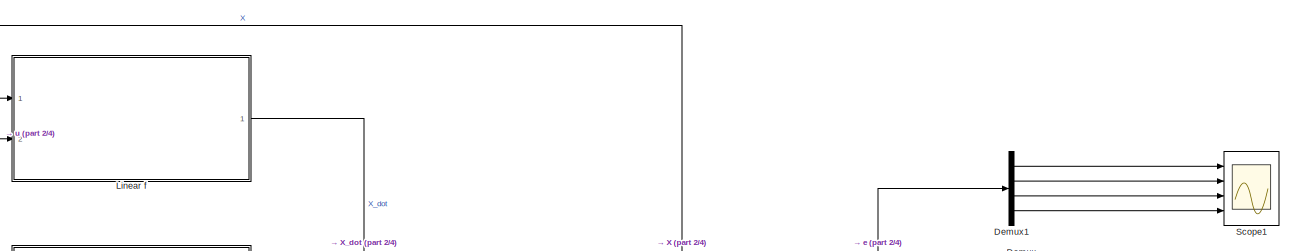
[diagram: root canvas - part 1/4, full width, top band]
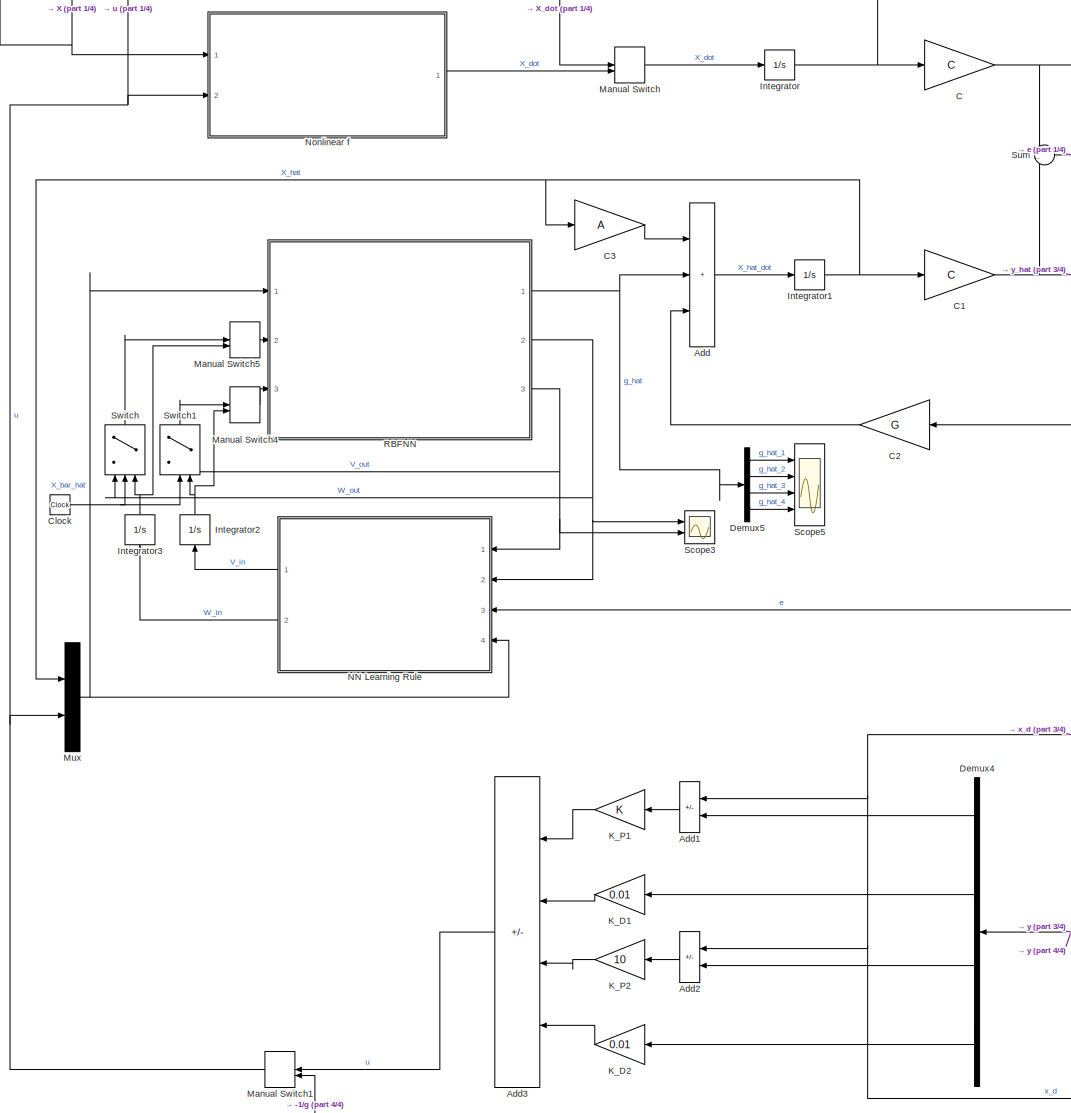
[diagram: root canvas - part 2/4, central region]
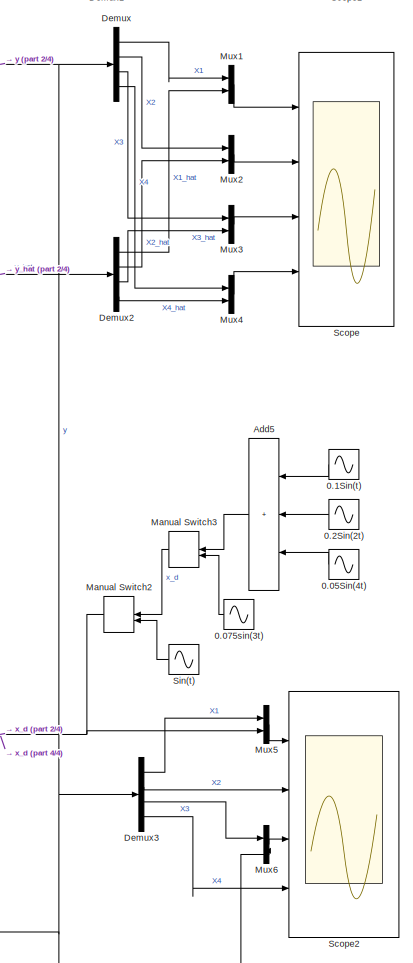
[diagram: root canvas - part 3/4, middle right region]
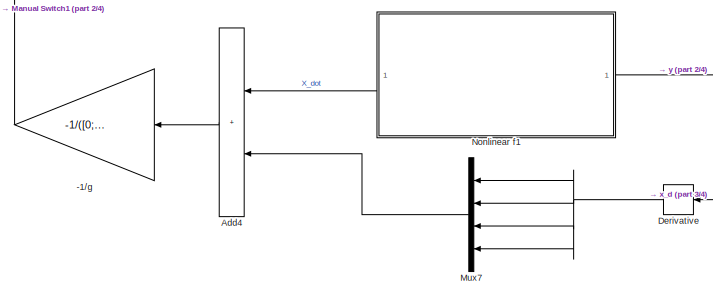
[diagram: root canvas - part 4/4, bottom center region]
MODEL slx_8a7c0950b799
KIND model
CONFIG AbsTol = auto
CONFIG EnableMultiTasking = off
CONFIG FixedStep = auto
CONFIG MaxStep = auto
CONFIG MinStep = auto
CONFIG RelTol = 1e-3
CONFIG SampleTimeConstraint = Unconstrained
CONFIG SolverName = VariableStepAuto
CONFIG StartTime = 0.0
CONFIG StopTime = 100
BLOCK [Gain] -1//g
  Gain = -1/([0;98.3333;0;-98.3333])
  Multiplication = Matrix(K*u)
  NameLocation = top
BLOCK [Sin] 0.05Sin(4t)
  Amplitude = 0.05
  Frequency = 4
  Ports = [0, 1]
  SampleTime = 0
BLOCK [Sin] 0.075sin(3t)
  Amplitude = 0.075
  Frequency = 3
  Ports = [0, 1]
  SampleTime = 0
BLOCK [Sin] 0.1Sin(t)
  Amplitude = 0.1
  Ports = [0, 1]
  SampleTime = 0
BLOCK [Sin] 0.2Sin(2t)
  Amplitude = 0.2
  Frequency = 2
  Ports = [0, 1]
  SampleTime = 0
BLOCK [Sum] Add
  IconShape = rectangular
  Inputs = +++
  Ports = [3, 1]
BLOCK [Sum] Add1
  IconShape = rectangular
  Inputs = +-
  NameLocation = top
  Ports = [2, 1]
BLOCK [Sum] Add2
  IconShape = rectangular
  Inputs = +-
  NameLocation = top
  Ports = [2, 1]
BLOCK [Sum] Add3
  IconShape = rectangular
  Inputs = +-+-
  NameLocation = top
  Ports = [4, 1]
BLOCK [Sum] Add4
  IconShape = rectangular
  NameLocation = top
  Ports = [2, 1]
BLOCK [Sum] Add5
  IconShape = rectangular
  Inputs = +++
  NameLocation = top
  Ports = [3, 1]
BLOCK [Gain] C
  Gain = C
  Multiplication = Matrix(K*u)
BLOCK [Gain] C1
  Gain = C
  Multiplication = Matrix(K*u)
BLOCK [Gain] C2
  Gain = G
  Multiplication = Matrix(K*u)
  NameLocation = top
BLOCK [Gain] C3
  Gain = A
  Multiplication = Matrix(K*u)
BLOCK [Clock] Clock
BLOCK [Demux] Demux
  Ports = [1, 4]
BLOCK [Demux] Demux1
  Ports = [1, 4]
BLOCK [Demux] Demux2
  Ports = [1, 4]
BLOCK [Demux] Demux3
  Ports = [1, 4]
BLOCK [Demux] Demux4
  NameLocation = top
  Ports = [1, 4]
BLOCK [Demux] Demux5
  Ports = [1, 4]
BLOCK [Derivative] Derivative
  NameLocation = top
BLOCK [Integrator] Integrator
  InitialCondition = [0;0;0;0]
  Ports = [1, 1]
BLOCK [Integrator] Integrator1
  InitialCondition = [0;0;0;0]
  Ports = [1, 1]
BLOCK [Integrator] Integrator2
  InitialCondition = V0
  NameLocation = right
  Ports = [1, 1]
BLOCK [Integrator] Integrator3
  InitialCondition = W0
  NameLocation = right
  Ports = [1, 1]
BLOCK [Gain] K_D1
  Gain = 0.01
BLOCK [Gain] K_D2
  Gain = 0.01
BLOCK [Gain] K_P1
BLOCK [Gain] K_P2
  Gain = 10
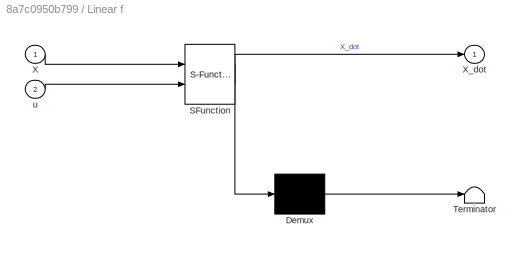
BLOCK [SubSystem] Linear f
  ErrorFcn = Stateflow.Translate.translate
  PermitHierarchicalResolution = ExplicitOnly
  Ports = [2, 1]
  RequestExecContextInheritance = off
  SFBlockType = MATLAB Function
  TreatAsAtomicUnit = on
BLOCK [Demux] Linear f/ Demux 
  Outputs = 1
  Ports = [1, 1]
BLOCK [S-Function] Linear f/ SFunction 
  EnableBusSupport = on
  FunctionName = sf_sfun
  PortCounts = [2 2]
  Ports = [2, 2]
  SFcnIsStateOwnerBlock = off
  SFunctionDeploymentMode = off
  Tag = Stateflow S-Function 4
BLOCK [Terminator] Linear f/ Terminator 
BLOCK [Inport] Linear f/X
BLOCK [Outport] Linear f/X_dot
BLOCK [Inport] Linear f/u
  Port = 2
BLOCK [ManualSwitch] Manual Switch
  CurrentSetting = 0
BLOCK [ManualSwitch] Manual Switch1
  NameLocation = top
BLOCK [ManualSwitch] Manual Switch2
  CurrentSetting = 0
  NameLocation = top
BLOCK [ManualSwitch] Manual Switch3
  CurrentSetting = 0
  NameLocation = top
BLOCK [ManualSwitch] Manual Switch4
BLOCK [ManualSwitch] Manual Switch5
BLOCK [Mux] Mux
  DisplayOption = bar
  Inputs = 2
  Ports = [2, 1]
BLOCK [Mux] Mux1
  DisplayOption = bar
  Inputs = 2
  Ports = [2, 1]
BLOCK [Mux] Mux2
  DisplayOption = bar
  Inputs = 2
  Ports = [2, 1]
BLOCK [Mux] Mux3
  DisplayOption = bar
  Inputs = 2
  Ports = [2, 1]
BLOCK [Mux] Mux4
  DisplayOption = bar
  Inputs = 2
  Ports = [2, 1]
BLOCK [Mux] Mux5
  DisplayOption = bar
  Inputs = 2
  Ports = [2, 1]
BLOCK [Mux] Mux6
  DisplayOption = bar
  Inputs = 2
  Ports = [2, 1]
BLOCK [Mux] Mux7
  DisplayOption = bar
  NameLocation = top
  Ports = [4, 1]
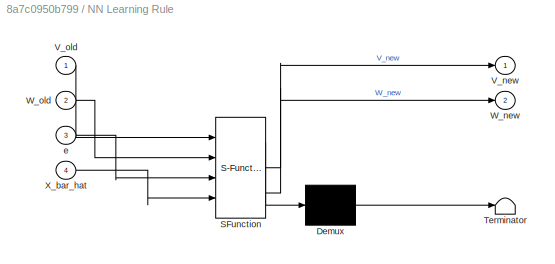
BLOCK [SubSystem] NN Learning Rule
  ErrorFcn = Stateflow.Translate.translate
  NameLocation = top
  PermitHierarchicalResolution = ExplicitOnly
  Ports = [4, 2]
  RequestExecContextInheritance = off
  SFBlockType = MATLAB Function
  TreatAsAtomicUnit = on
BLOCK [Demux] NN Learning Rule/ Demux 
  Outputs = 1
  Ports = [1, 1]
BLOCK [S-Function] NN Learning Rule/ SFunction 
  EnableBusSupport = on
  FunctionName = sf_sfun
  Parameters = Ac,C,eta1,eta2,rho1,rho2,size_hiddenlayerneurons
  PortCounts = [4 3]
  Ports = [4, 3]
  SFcnIsStateOwnerBlock = off
  SFunctionDeploymentMode = off
  Tag = Stateflow S-Function 3
BLOCK [Terminator] NN Learning Rule/ Terminator 
BLOCK [Outport] NN Learning Rule/V_new
BLOCK [Inport] NN Learning Rule/V_old
BLOCK [Outport] NN Learning Rule/W_new
  Port = 2
BLOCK [Inport] NN Learning Rule/W_old
  Port = 2
BLOCK [Inport] NN Learning Rule/X_bar_hat
  Port = 4
BLOCK [Inport] NN Learning Rule/e
  Port = 3
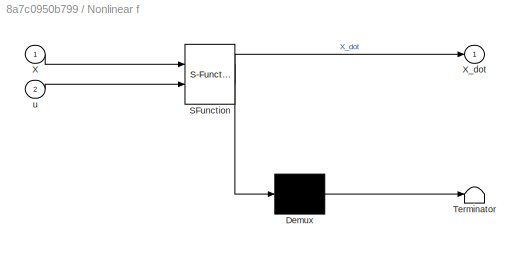
BLOCK [SubSystem] Nonlinear f
  ErrorFcn = Stateflow.Translate.translate
  PermitHierarchicalResolution = ExplicitOnly
  Ports = [2, 1]
  RequestExecContextInheritance = off
  SFBlockType = MATLAB Function
  TreatAsAtomicUnit = on
BLOCK [Demux] Nonlinear f/ Demux 
  Outputs = 1
  Ports = [1, 1]
BLOCK [S-Function] Nonlinear f/ SFunction 
  EnableBusSupport = on
  FunctionName = sf_sfun
  PortCounts = [2 2]
  Ports = [2, 2]
  SFcnIsStateOwnerBlock = off
  SFunctionDeploymentMode = off
  Tag = Stateflow S-Function 2
BLOCK [Terminator] Nonlinear f/ Terminator 
BLOCK [Inport] Nonlinear f/X
BLOCK [Outport] Nonlinear f/X_dot
BLOCK [Inport] Nonlinear f/u
  Port = 2
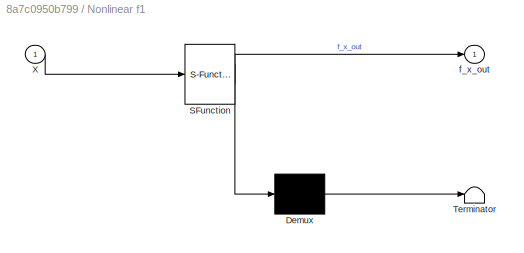
BLOCK [SubSystem] Nonlinear f1
  ErrorFcn = Stateflow.Translate.translate
  NameLocation = top
  PermitHierarchicalResolution = ExplicitOnly
  Ports = [1, 1]
  RequestExecContextInheritance = off
  SFBlockType = MATLAB Function
  TreatAsAtomicUnit = on
BLOCK [Demux] Nonlinear f1/ Demux 
  Outputs = 1
  Ports = [1, 1]
BLOCK [S-Function] Nonlinear f1/ SFunction 
  EnableBusSupport = on
  FunctionName = sf_sfun
  PortCounts = [1 2]
  Ports = [1, 2]
  SFcnIsStateOwnerBlock = off
  SFunctionDeploymentMode = off
  Tag = Stateflow S-Function 5
BLOCK [Terminator] Nonlinear f1/ Terminator 
BLOCK [Inport] Nonlinear f1/X
BLOCK [Outport] Nonlinear f1/f_x_out
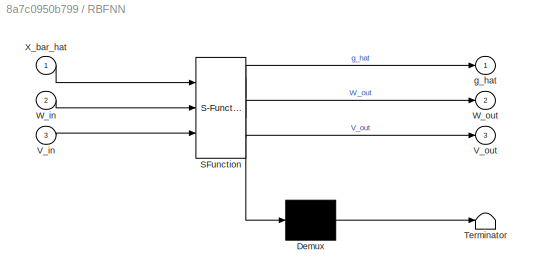
BLOCK [SubSystem] RBFNN
  ErrorFcn = Stateflow.Translate.translate
  PermitHierarchicalResolution = ExplicitOnly
  Ports = [3, 3]
  RequestExecContextInheritance = off
  SFBlockType = MATLAB Function
  TreatAsAtomicUnit = on
BLOCK [Demux] RBFNN/ Demux 
  Outputs = 1
  Ports = [1, 1]
BLOCK [S-Function] RBFNN/ SFunction 
  EnableBusSupport = on
  FunctionName = sf_sfun
  Parameters = size_hiddenlayerneurons,size_systeminput
  PortCounts = [3 4]
  Ports = [3, 4]
  SFcnIsStateOwnerBlock = off
  SFunctionDeploymentMode = off
  Tag = Stateflow S-Function 1
BLOCK [Terminator] RBFNN/ Terminator 
BLOCK [Inport] RBFNN/V_in
  Port = 3
BLOCK [Outport] RBFNN/V_out
  Port = 3
BLOCK [Inport] RBFNN/W_in
  Port = 2
BLOCK [Outport] RBFNN/W_out
  Port = 2
BLOCK [Inport] RBFNN/X_bar_hat
BLOCK [Outport] RBFNN/g_hat
BLOCK [Scope] Scope
  Floating = off
  NumInputPorts = 4
  Ports = [4]
  ScopeSpecificationString = Simulink.scopes.TimeScopeBlockCfg('CurrentConfiguration', extmgr.ConfigurationSet(extmgr.Configuration('Core','General UI',true),extmgr.Configuration('Core','Source UI',true),extmgr.Configuration('Sources','WiredSimulink',true),extmgr.Configuration('Visuals','Time Domain',true,'SerializedDisplays',{struct('MinYLimReal','-0.58382','MaxYLimReal','1.62564','YLabelReal','','MinYLimMag','0.00000','MaxY...<+3413ch>
BLOCK [Scope] Scope1
  Floating = off
  NumInputPorts = 4
  Ports = [4]
  ScopeSpecificationString = Simulink.scopes.TimeScopeBlockCfg('CurrentConfiguration', extmgr.ConfigurationSet(extmgr.Configuration('Core','General UI',true),extmgr.Configuration('Core','Source UI',true),extmgr.Configuration('Sources','WiredSimulink',true,'DataLoggingVariableName','ScopeData1'),extmgr.Configuration('Visuals','Time Domain',true,'SerializedDisplays',{struct('MinYLimReal','-0.11143','MaxYLimReal','0.07638','YLab...<+3439ch>
BLOCK [Scope] Scope2
  Floating = off
  NumInputPorts = 4
  Ports = [4]
  ScopeSpecificationString = Simulink.scopes.TimeScopeBlockCfg('CurrentConfiguration', extmgr.ConfigurationSet(extmgr.Configuration('Core','General UI',true),extmgr.Configuration('Core','Source UI',true),extmgr.Configuration('Sources','WiredSimulink',true,'DataLoggingVariableName','ScopeData2'),extmgr.Configuration('Visuals','Time Domain',true,'SerializedDisplays',{struct('MinYLimReal','-0.34881','MaxYLimReal','0.34887','YLab...<+3423ch>
BLOCK [Scope] Scope3
  Floating = off
  NumInputPorts = 2
  Ports = [2]
  ScopeSpecificationString = Simulink.scopes.TimeScopeBlockCfg('CurrentConfiguration', extmgr.ConfigurationSet(extmgr.Configuration('Core','General UI',true),extmgr.Configuration('Core','Source UI',true),extmgr.Configuration('Sources','WiredSimulink',true,'DataLoggingVariableName','ScopeData3'),extmgr.Configuration('Visuals','Time Domain',true,'SerializedDisplays',{struct('MinYLimReal','-24.30165','MaxYLimReal','20.22903','YL...<+2980ch>
BLOCK [Scope] Scope5
  Floating = off
  NumInputPorts = 4
  Ports = [4]
  ScopeSpecificationString = Simulink.scopes.TimeScopeBlockCfg('CurrentConfiguration', extmgr.ConfigurationSet(extmgr.Configuration('Core','General UI',true),extmgr.Configuration('Core','Source UI',true),extmgr.Configuration('Sources','WiredSimulink',true,'DataLoggingVariableName','ScopeData5'),extmgr.Configuration('Visuals','Time Domain',true,'SerializedDisplays',{struct('MinYLimReal','-25.64703','MaxYLimReal','32.13099','YL...<+1888ch>
BLOCK [Sin] Sin(t)
  Ports = [0, 1]
  SampleTime = 0
BLOCK [Sum] Sum
  Inputs = +-
  Ports = [2, 1]
BLOCK [Switch] Switch
  Criteria = u2 > Threshold
  InputSameDT = off
  NameLocation = right
  SaturateOnIntegerOverflow = off
  Threshold = 90
BLOCK [Switch] Switch1
  Criteria = u2 > Threshold
  InputSameDT = off
  NameLocation = right
  SaturateOnIntegerOverflow = off
  Threshold = 90
LINE -1//g:1 -> Manual Switch1:2
LINE 0.05Sin(4t):1 -> Add5:3
LINE 0.075sin(3t):1 -> Manual Switch3:2
LINE 0.1Sin(t):1 -> Add5:1
LINE 0.2Sin(2t):1 -> Add5:2
LINE Add1:1 -> K_P1:1
LINE Add2:1 -> K_P2:1
LINE Add3:1 -> Manual Switch1:1
LINE Add4:1 -> -1//g:1
LINE Add5:1 -> Manual Switch3:1
LINE Add:1 -> Integrator1:1
NET C1:1 -> Demux2:1, Sum:2
LINE C2:1 -> Add:3
LINE C3:1 -> Add:1
NET C:1 -> Demux3:1, Demux4:1, Demux:1, Nonlinear f1:1, Sum:1
NET Clock:1 -> Switch1:2, Switch:2
LINE Demux1:1 -> Scope1:1
LINE Demux1:2 -> Scope1:2
LINE Demux1:3 -> Scope1:3
LINE Demux1:4 -> Scope1:4
LINE Demux2:1 -> Mux1:2
LINE Demux2:2 -> Mux2:2
LINE Demux2:3 -> Mux3:2
LINE Demux2:4 -> Mux4:2
LINE Demux3:1 -> Mux5:1
LINE Demux3:2 -> Scope2:2
LINE Demux3:3 -> Mux6:1
LINE Demux3:4 -> Scope2:4
LINE Demux4:1 -> Add1:2
LINE Demux4:2 -> K_D1:1
LINE Demux4:3 -> Add2:2
LINE Demux4:4 -> K_D2:1
LINE Demux5:1 -> Scope5:1
LINE Demux5:2 -> Scope5:2
LINE Demux5:3 -> Scope5:3
LINE Demux5:4 -> Scope5:4
LINE Demux:1 -> Mux1:1
LINE Demux:2 -> Mux2:1
LINE Demux:3 -> Mux3:1
LINE Demux:4 -> Mux4:1
NET Derivative:1 -> Mux7:1, Mux7:2, Mux7:3, Mux7:4
NET Integrator1:1 -> C1:1, C3:1, Mux:1
NET Integrator2:1 -> Manual Switch4:2, Switch1:3
NET Integrator3:1 -> Manual Switch5:2, Switch:3
NET Integrator:1 -> C:1, Linear f:1, Nonlinear f:1
LINE K_D1:1 -> Add3:2
LINE K_D2:1 -> Add3:4
LINE K_P1:1 -> Add3:1
LINE K_P2:1 -> Add3:3
LINE Linear f:1 -> Manual Switch:1
NET Manual Switch1:1 -> Linear f:2, Mux:2, Nonlinear f:2
NET Manual Switch2:1 -> Add1:1, Add2:1, Derivative:1, Mux5:2, Mux6:2
LINE Manual Switch3:1 -> Manual Switch2:1
LINE Manual Switch4:1 -> RBFNN:3
LINE Manual Switch5:1 -> RBFNN:2
LINE Manual Switch:1 -> Integrator:1
LINE Mux1:1 -> Scope:1
LINE Mux2:1 -> Scope:2
LINE Mux3:1 -> Scope:3
LINE Mux4:1 -> Scope:4
LINE Mux5:1 -> Scope2:1
LINE Mux6:1 -> Scope2:3
LINE Mux7:1 -> Add4:2
NET Mux:1 -> NN Learning Rule:4, RBFNN:1
LINE NN Learning Rule:1 -> Integrator2:1
LINE NN Learning Rule:2 -> Integrator3:1
LINE Nonlinear f1:1 -> Add4:1
LINE Nonlinear f:1 -> Manual Switch:2
NET RBFNN:1 -> Add:2, Demux5:1
NET RBFNN:2 -> NN Learning Rule:2, Scope3:1, Switch:1
NET RBFNN:3 -> NN Learning Rule:1, Scope3:2, Switch1:1
LINE Sin(t):1 -> Manual Switch2:2
NET Sum:1 -> C2:1, Demux1:1, NN Learning Rule:3
LINE Switch1:1 -> Manual Switch4:1
LINE Switch:1 -> Manual Switch5:1
note: NET lines group one-source signal fan-out (src -> all destinations, sorted); 1:1 wires keep LINE
CHART RBFNN states=1 transitions=1
  STATE_LABEL 'eML_blk_kernel()'
  STATE_LABEL 'SCRIPT:\nfunction [g_hat,W_out,V_out] = RBFNN(X_bar_hat, W_in,V_in, size_hiddenlayerneurons, size_systeminput)\n\nm = size_hiddenlayerneurons;               % number of hidden-layer neurons\nm_xu = size(X_bar_hat,1);       % input size\nm_u = size_systeminput;         % system input size\nn = m_xu - m_u;               % output size\n\n% creating the output of the RBF network :\n\noutput = zeros(n,1);\n\nfor o...<+338ch>'
CHART Nonlinear f states=1 transitions=1
  STATE_LABEL 'eML_blk_kernel()'
  STATE_LABEL 'SCRIPT:\nfunction X_dot = f(X, u)\n\nX1 = X(1,1);\nX2 = X(2,1);\nX3 = X(3,1);\nX4 = X(4,1);\n\nK_s = 1.61;\nJ_h = 0.0021;\nm = 0.403;\ng = -9.81;\nh = 0.06;\nK_m = 0.00767;\nK_g = 70;\nJ_l = 0.0059;\nR_m = 2.6;\n\nX1_dot = X2;\nX2_dot = - (K_s/J_h)*X1 + (((K_m^2)*(K_g^2))/(R_m*J_h))*X4 - (((K_m)*(K_g))/(R_m*J_h))*u - (K_s/J_l)*X1 + ((m*g*h)/J_l)*sin(X1 + X3);\nX3_dot = X4;\nX4_dot = (K_s/J_h)*X1 - (((K_m^2)*(K_g^2))/(...<+88ch>'
CHART NN Learning Rule states=1 transitions=1
  STATE_LABEL 'eML_blk_kernel()'
  STATE_LABEL 'SCRIPT:\nfunction [V_new,W_new] = learningrule(V_old, W_old, e, X_bar_hat, Ac, C, size_hiddenlayerneurons, eta1, eta2, rho1, rho2)\n\n\nW_hat = W_old;\nV_hat = V_old;\n\nLambda_arg = zeros(1,size_hiddenlayerneurons);\nSigma_hl = zeros(size_hiddenlayerneurons,1);\nfor m = 1 : size_hiddenlayerneurons\n   \n    Lambda_arg(1,m) = (RBF(X_bar_hat,V_hat(m,:)))^2;\n    Sigma_hl(m,1) = RBF(X_bar_hat,V_hat(m,:));\n    \n...<+419ch>'
CHART Linear f states=1 transitions=1
  STATE_LABEL 'eML_blk_kernel()'
  STATE_LABEL 'SCRIPT:\nfunction X_dot = f(X, u)\n\nX1 = X(1,1);\nX2 = X(2,1);\nX3 = X(3,1);\nX4 = X(4,1);\n\nk = 0.8;\nJ_m = 0.0004;\nJ_l = 0.0004;\nB_m = 0.015;\nB_l = 0.001;\n\nX1_dot = X2;\nX2_dot = (-1/J_l)*(B_l*X2 + k*(X1 - X3));\nX3_dot = X4;\nX4_dot = (-1/J_m)*(B_m*X4 - k*(X1 - X3) -u);\n\nX_dot = [X1_dot;X2_dot;X3_dot;X4_dot];\nend'
CHART Nonlinear f1 states=1 transitions=1
  STATE_LABEL 'eML_blk_kernel()'
  STATE_LABEL 'SCRIPT:\nfunction f_x_out = f_x(X)\n\nX1 = X(1,1);\nX2 = X(2,1);\nX3 = X(3,1);\nX4 = X(4,1);\n\nK_s = 1.61;\nJ_h = 0.0021;\nm = 0.403;\ng = -9.81;\nh = 0.06;\nK_m = 0.00767;\nK_g = 70;\nJ_l = 0.0059;\nR_m = 2.6;\n\nX1_dot = X2;\nX2_dot = - (K_s/J_h)*X1 + (((K_m^2)*(K_g^2))/(R_m*J_h))*X4 - (K_s/J_l)*X1 + ((m*g*h)/J_l)*sin(X1 + X3);\nX3_dot = X4;\nX4_dot = (K_s/J_h)*X1 - (((K_m^2)*(K_g^2))/(R_m*J_h))*X4;\n\nf_x_out = [X1_...<+31ch>'
CHART  states=0 transitions=0
CHART  states=0 transitions=0
CHART  states=0 transitions=0
CHART  states=0 transitions=0
CHART  states=0 transitions=0
